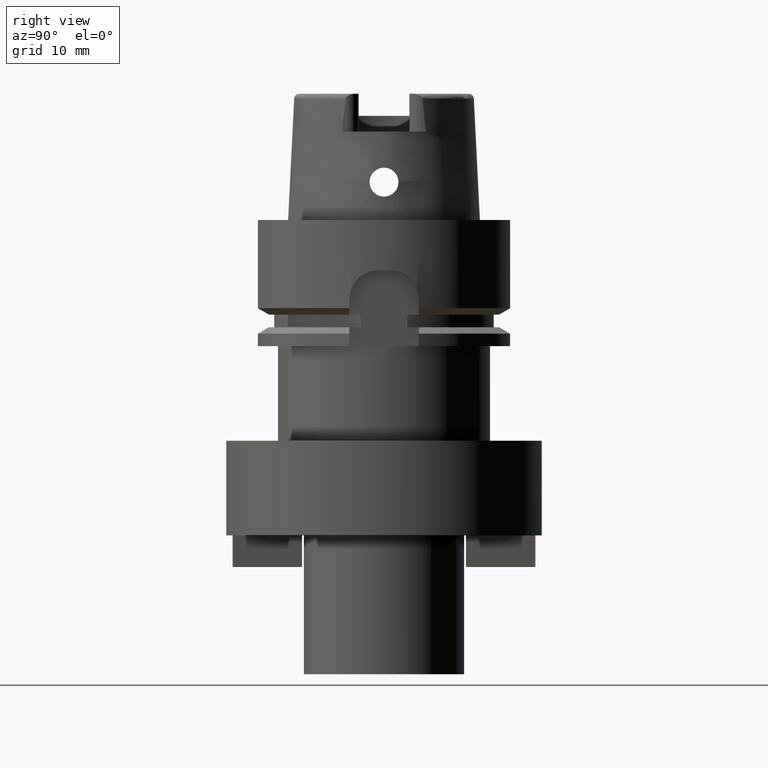
[diagram: clean part render]
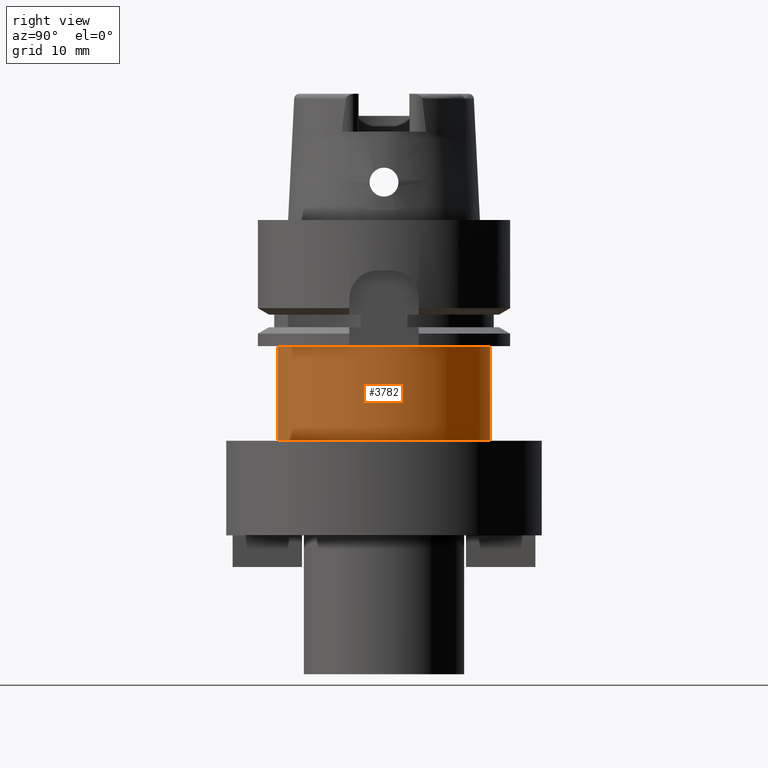
[diagram: same view with one face highlighted and labeled with its STEP entity id]
A machine part, right view. The second image highlights one B-rep face of the part: STEP entity #3782.
In plain terms, the highlighted cylindrical surface (partial cylindrical patch) has radius 16.8 mm, axis along (0, 0, 1).
Its self-contained STEP definition (entity closure, byte-faithful):
#1153=CARTESIAN_POINT('',(0.E0,0.E0,-3.5E1));
#1154=DIRECTION('',(0.E0,0.E0,1.E0));
#1155=DIRECTION('',(0.E0,-1.E0,0.E0));
#1156=AXIS2_PLACEMENT_3D('',#1153,#1154,#1155);
#1169=DIRECTION('',(0.E0,0.E0,-1.E0));
#1170=VECTOR('',#1169,1.5E1);
#1171=CARTESIAN_POINT('',(0.E0,1.68E1,-2.E1));
#1172=LINE('',#1171,#1170);
#1176=DIRECTION('',(0.E0,0.E0,-1.E0));
#1177=VECTOR('',#1176,1.5E1);
#1178=CARTESIAN_POINT('',(0.E0,-1.68E1,-2.E1));
#1179=LINE('',#1178,#1177);
#1259=CARTESIAN_POINT('',(0.E0,0.E0,-2.E1));
#1260=DIRECTION('',(0.E0,0.E0,-1.E0));
#1261=DIRECTION('',(0.E0,1.E0,0.E0));
#1262=AXIS2_PLACEMENT_3D('',#1259,#1260,#1261);
#2703=CARTESIAN_POINT('',(0.E0,-1.68E1,-3.5E1));
#2704=CARTESIAN_POINT('',(0.E0,1.68E1,-3.5E1));
#2705=VERTEX_POINT('',#2703);
#2706=VERTEX_POINT('',#2704);
#2707=CARTESIAN_POINT('',(0.E0,1.68E1,-2.E1));
#2708=VERTEX_POINT('',#2707);
#2709=CARTESIAN_POINT('',(0.E0,-1.68E1,-2.E1));
#2710=VERTEX_POINT('',#2709);
#3768=CARTESIAN_POINT('',(0.E0,0.E0,-7.66E1));
#3769=DIRECTION('',(0.E0,0.E0,1.E0));
#3770=DIRECTION('',(0.E0,1.E0,0.E0));
#3771=AXIS2_PLACEMENT_3D('',#3768,#3769,#3770);
#3772=CYLINDRICAL_SURFACE('',#3771,1.68E1);
#3774=ORIENTED_EDGE('',*,*,#3773,.T.);
#3775=ORIENTED_EDGE('',*,*,#3761,.F.);
#3777=ORIENTED_EDGE('',*,*,#3776,.F.);
#3779=ORIENTED_EDGE('',*,*,#3778,.F.);
#3780=EDGE_LOOP('',(#3774,#3775,#3777,#3779));
#3781=FACE_OUTER_BOUND('',#3780,.F.);
#1157=CIRCLE('',#1156,1.68E1);
#1263=CIRCLE('',#1262,1.68E1);
#3761=EDGE_CURVE('',#2705,#2706,#1157,.T.);
#3773=EDGE_CURVE('',#2708,#2706,#1172,.T.);
#3776=EDGE_CURVE('',#2710,#2705,#1179,.T.);
#3778=EDGE_CURVE('',#2708,#2710,#1263,.T.);
#3782=ADVANCED_FACE('',(#3781),#3772,.T.);